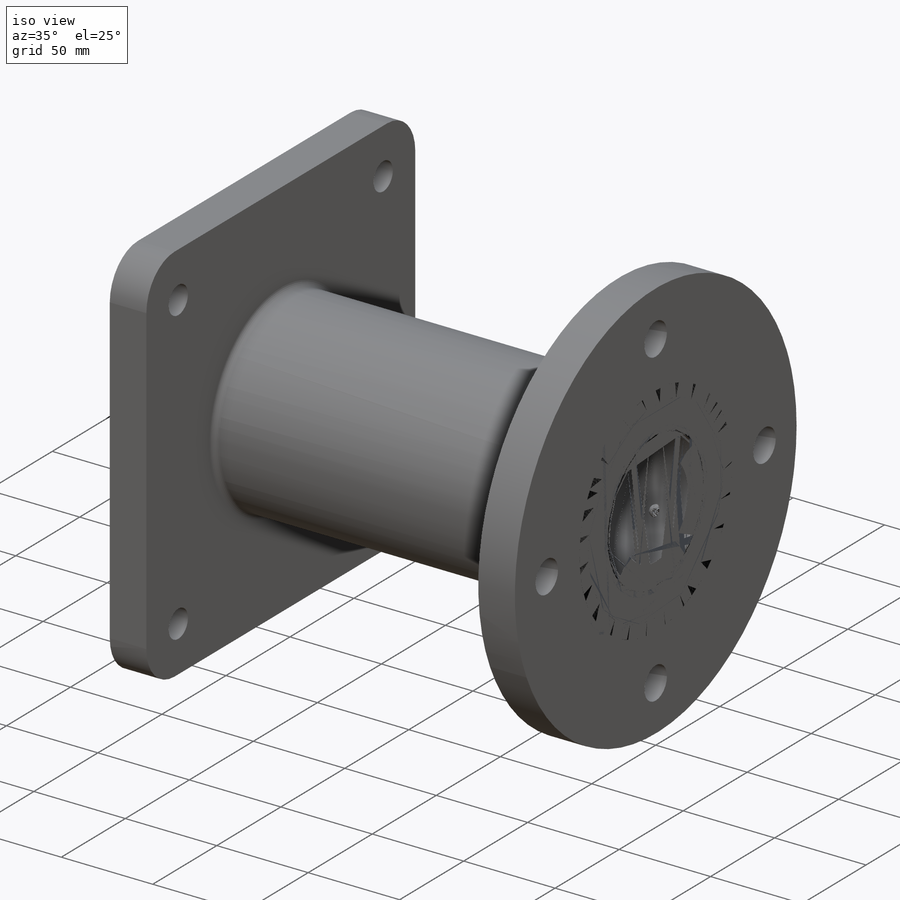
[diagram: iso view]
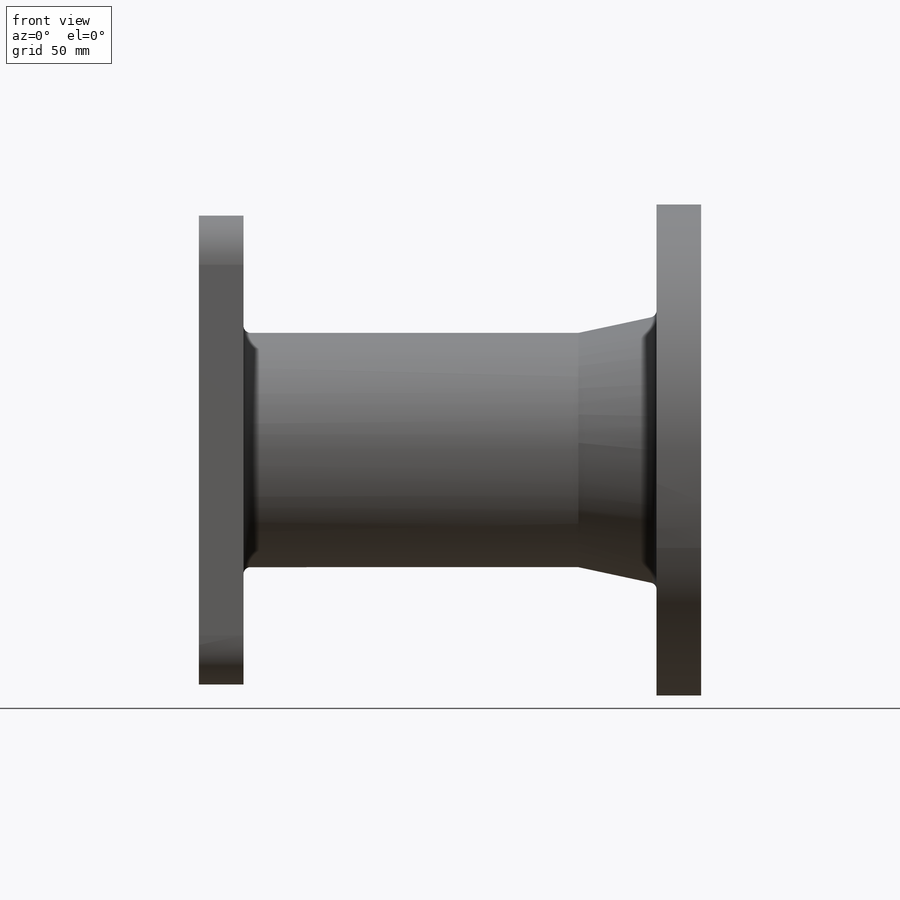
[diagram: front view]
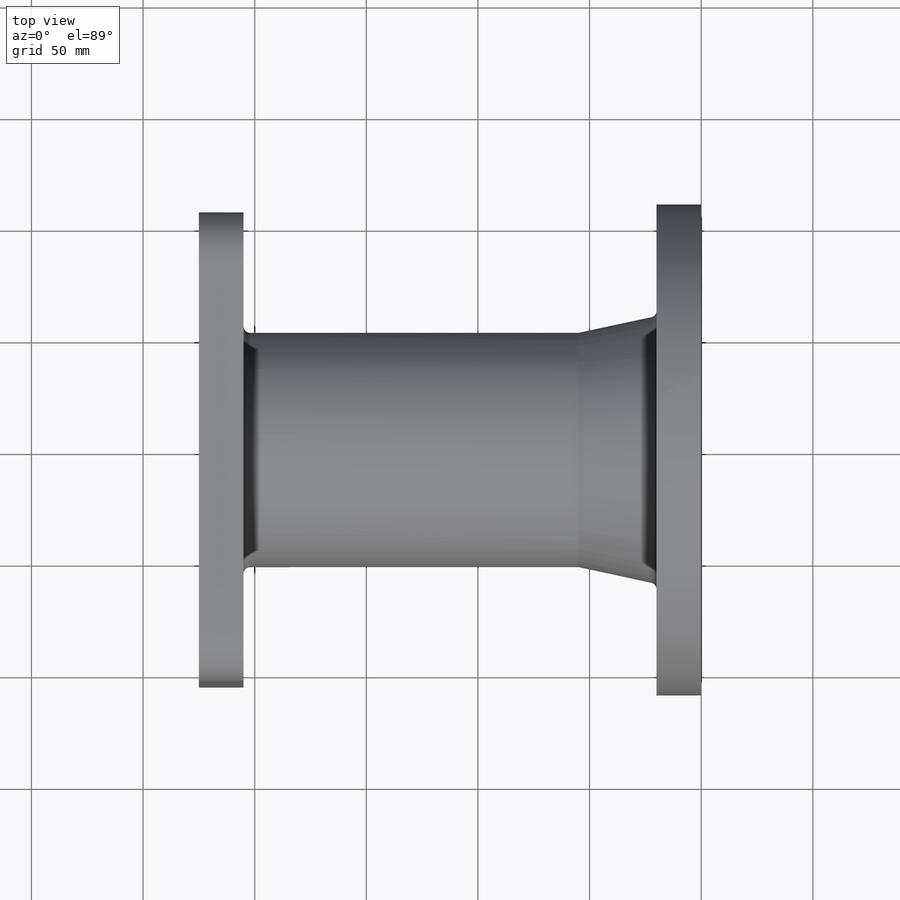
[diagram: top view]
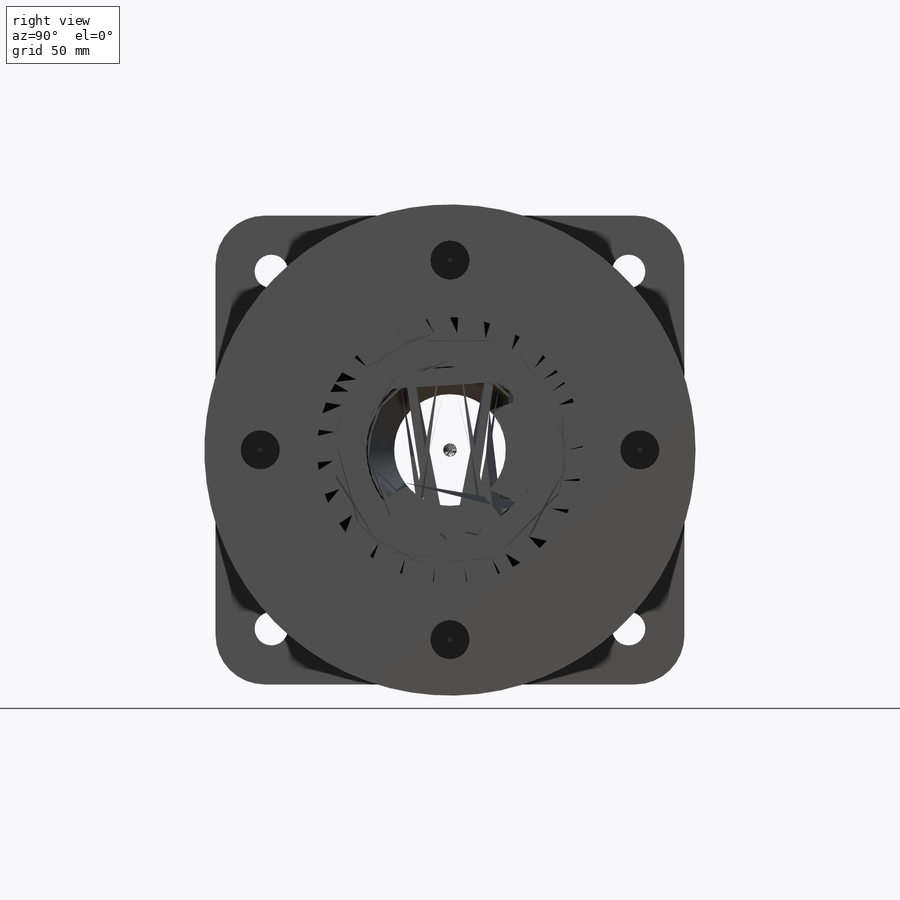
[diagram: right view]
SOLIDWORKS PART (.sldprt)
format: sldprt  version: not decoded by parser v0  size: 480,256 bytes
history: native  units: mm
features: sketch x5, plane x3, fillet x3, cut_extrude x2, pattern_circular x2, extrude x2, material x1, revolve x1, thread x1 (+9 scaffold rows collapsed)
feature tree (29):
  scaffold x9  (default folders/planes/origin — collapsed)
  material  "Сталь"
  plane  "Спереди"
  plane  "Сверху"
  plane  "Справа"
  sketch  "Эскиз1"  dims[D1=220.0mm D2=20.0mm D3=75.0mm D4=105.0mm D5=120.0mm D6=35.0mm D7=150.0mm D8=210.0mm D9=210.0mm D10=125.0mm D11=57.425mm D12=50.0mm D13=77.5mm D14=80.0mm D15=65.0mm D16=95.0mm]
  revolve  "Повернуть1"  [1 undecoded]
  thread  "Условное изображение резьбы1"  Diameter=64mm  [1 undecoded]
  sketch  "Эскиз2"  dims[D2=17.5mm D1=85.0mm]
  cut_extrude  "Вырез-Вытянуть1"  [1 undecoded]
  pattern_circular  "Круговой массив1"  Count=4 Angle=360deg
  sketch  "Эскиз3"  dims[D1=220.0mm]
  extrude  "Бобышка-Вытянуть1"  [1 undecoded]
  sketch  "Эскиз4"  dims[c1.D1=~21.34612mm c1.D2=15.0mm c2.D1=80.0mm]
  cut_extrude  "Вырез-Вытянуть2"  [1 undecoded]
  fillet  "Скругление1"  Radius=22mm
  pattern_circular  "Круговой массив5"  Count=4 Angle=360deg
  fillet  "Скругление2"  Radius=3mm
  sketch  "Эскиз5"  dims[D1=55.0mm]
  extrude  "Бобышка-Вытянуть2"  [1 undecoded]
  fillet  "Скругление3"  Radius=3mm
decode coverage: 11 of 16 modeling features carry decoded parameters
note: ~ marks probable driven/reference dimensions
note: 6 parameter values undecoded
summary: no parameter record found for 5 features
note: suppression state not decoded; provenance and decode notes live in map.json
